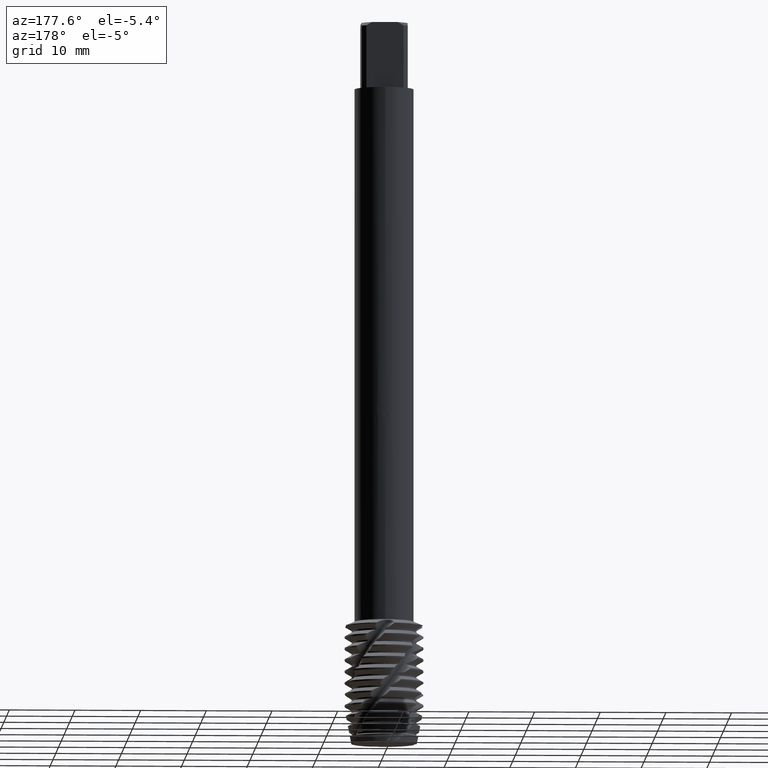
[diagram: clean part render]
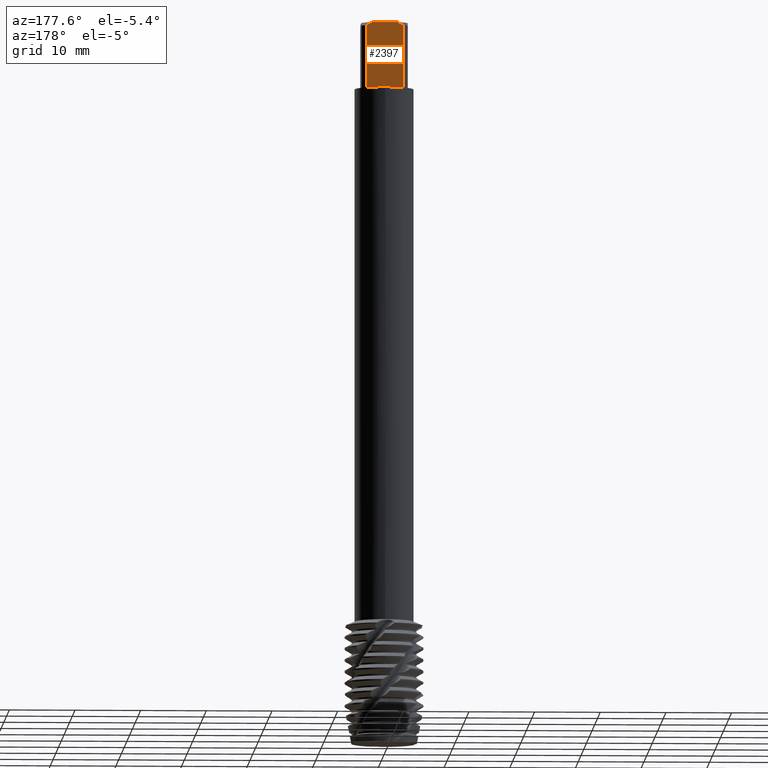
[diagram: same view with one face highlighted and labeled with its STEP entity id]
A machine part, auxiliary view. The second image highlights one B-rep face of the part: STEP entity #2397.
In plain terms, the highlighted planar face has unit normal (0, 1, 0).
Its self-contained STEP definition (entity closure, byte-faithful):
#2397=ADVANCED_FACE('',(#6629),#6630,.T.);
#2895=EDGE_CURVE('',#5791,#5331,#7165,.T.);
#2925=EDGE_CURVE('',#3673,#4673,#7199,.T.);
#3251=VERTEX_POINT('',#7555);
#3451=EDGE_CURVE('',#5331,#3673,#7768,.T.);
#3571=EDGE_CURVE('',#4673,#5271,#7896,.T.);
#3673=VERTEX_POINT('',#8007);
#3977=EDGE_CURVE('',#3251,#5791,#8344,.T.);
#4673=VERTEX_POINT('',#9107);
#5271=VERTEX_POINT('',#9749);
#5331=VERTEX_POINT('',#9819);
#5551=EDGE_CURVE('',#5271,#3251,#10058,.T.);
#5791=VERTEX_POINT('',#10317);
#6629=FACE_OUTER_BOUND('',#12452,.T.);
#6630=PLANE('',#12453);
#7165=LINE('',#14936,#14937);
#7199=LINE('',#14978,#14979);
#7555=CARTESIAN_POINT('',(-1.93649167310371,3.5,0.0));
#7768=LINE('',#17378,#17379);
#7896=(B_SPLINE_CURVE(2,(#17718,#17719,#17720),.UNSPECIFIED.,.F.,.F.)B_SPLINE_CURVE_WITH_KNOTS((3,3),(0.0,1.02290682797908),.UNSPECIFIED.)RATIONAL_B_SPLINE_CURVE((1.0,1.00555141588971,1.0))BOUNDED_CURVE()REPRESENTATION_ITEM('')GEOMETRIC_REPRESENTATION_ITEM()CURVE());
#8007=CARTESIAN_POINT('',(2.82842712474619,3.5,-10.0));
#8344=(B_SPLINE_CURVE(2,(#20239,#20240,#20241),.UNSPECIFIED.,.F.,.F.)B_SPLINE_CURVE_WITH_KNOTS((3,3),(0.0,1.02290682797908),.UNSPECIFIED.)RATIONAL_B_SPLINE_CURVE((1.0,1.00555141588971,1.0))BOUNDED_CURVE()REPRESENTATION_ITEM('')GEOMETRIC_REPRESENTATION_ITEM()CURVE());
#9107=CARTESIAN_POINT('',(2.82842712474619,3.5,-0.5));
#9749=CARTESIAN_POINT('',(1.93649167310371,3.5,0.0));
#9819=CARTESIAN_POINT('',(-2.82842712474619,3.5,-10.0));
#10058=LINE('',#29080,#29081);
#10317=CARTESIAN_POINT('',(-2.82842712474619,3.5,-0.5));
#12452=EDGE_LOOP('',(#33404,#33405,#33406,#33407,#33408,#33409));
#12453=AXIS2_PLACEMENT_3D('',#33410,#33411,#33412);
#14936=CARTESIAN_POINT('',(-2.82842712474619,3.5,-5.25));
#14937=VECTOR('',#33834,1.0);
#14978=CARTESIAN_POINT('',(2.82842712474619,3.5,-5.25));
#14979=VECTOR('',#33886,1.0);
#17378=CARTESIAN_POINT('',(0.0,3.5,-10.0));
#17379=VECTOR('',#34440,1.0);
#17718=CARTESIAN_POINT('',(2.82842712474619,3.5,-0.5));
#17719=CARTESIAN_POINT('',(2.3562260032884,3.5,-0.203203008829607));
#17720=CARTESIAN_POINT('',(1.93649167310371,3.5,5.55111512312578E-017));
#20239=CARTESIAN_POINT('',(-1.93649167310371,3.5,5.55111512312578E-017));
#20240=CARTESIAN_POINT('',(-2.3562260032884,3.5,-0.203203008829607));
#20241=CARTESIAN_POINT('',(-2.82842712474619,3.5,-0.5));
#29080=CARTESIAN_POINT('',(0.0,3.5,0.0));
#29081=VECTOR('',#36651,1.0);
#33404=ORIENTED_EDGE('',*,*,#2895,.F.);
#33405=ORIENTED_EDGE('',*,*,#3977,.F.);
#33406=ORIENTED_EDGE('',*,*,#5551,.F.);
#33407=ORIENTED_EDGE('',*,*,#3571,.F.);
#33408=ORIENTED_EDGE('',*,*,#2925,.F.);
#33409=ORIENTED_EDGE('',*,*,#3451,.F.);
#33410=CARTESIAN_POINT('',(0.0,3.5,-4.5));
#33411=DIRECTION('',(0.0,1.0,0.0));
#33412=DIRECTION('',(0.0,0.0,-1.0));
#33834=DIRECTION('',(0.0,0.0,-1.0));
#33886=DIRECTION('',(-0.0,-0.0,1.0));
#34440=DIRECTION('',(1.0,0.0,0.0));
#36651=DIRECTION('',(-1.0,0.0,0.0));